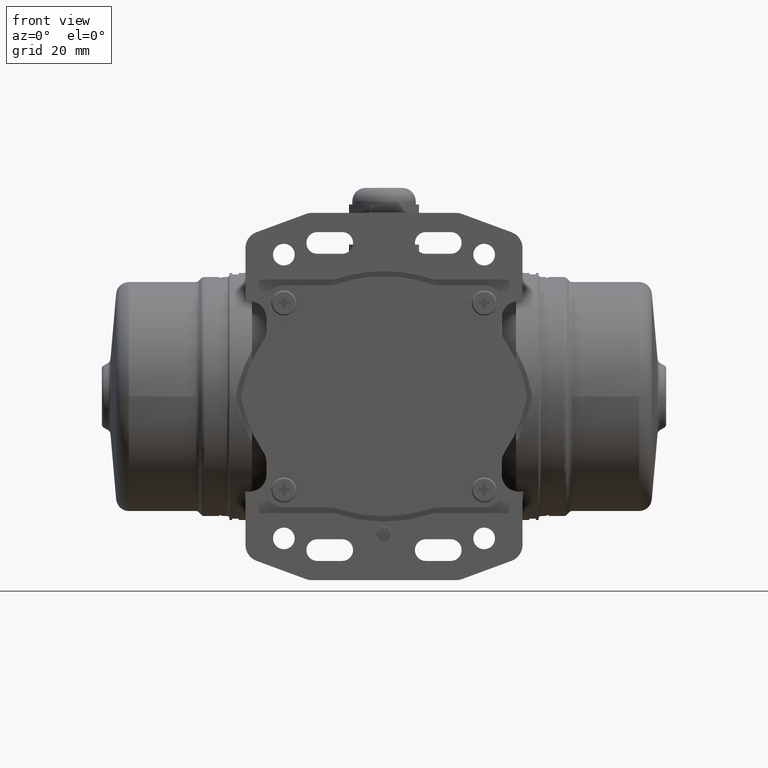
[diagram: clean part render]
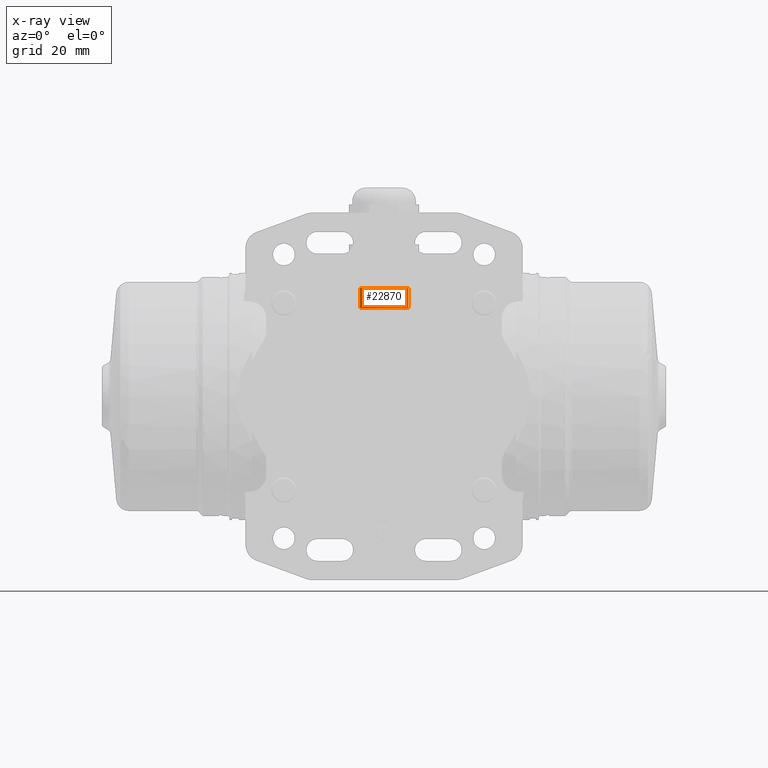
[diagram: x-ray — body ghosted, one internal face saturated and labeled with its STEP entity id]
A machine part, front view, then the same camera in x-ray: the body is ghosted and one INTERNAL B-rep face — a face not visible from any outside direction — is saturated and labeled: STEP entity #22870.
In plain terms, the highlighted cylindrical surface (edge-blend (fillet) strip) has radius 7.25 mm, axis along (0, 0, 1).
Its self-contained STEP definition (entity closure, byte-faithful):
#4714 = CARTESIAN_POINT ( 'NONE',  ( -7.249999999999992900, -18.00000000000000000, 32.50000000000000000 ) ) ;
#4731 = CARTESIAN_POINT ( 'NONE',  ( 7.250000000000008000, -18.00000000000000000, 26.50000000000000000 ) ) ;
#4733 = CIRCLE ( 'NONE', #4784, 7.250000000000000000 ) ;
#4746 = CARTESIAN_POINT ( 'NONE',  ( 8.239936510889830500E-015, -18.00000000000000000, 40.50000000000000000 ) ) ;
#4748 = CARTESIAN_POINT ( 'NONE',  ( 7.250000000000008000, -18.00000000000000000, 32.50000000000000000 ) ) ;
#4758 = CYLINDRICAL_SURFACE ( 'NONE', #4776, 7.250000000000000000 ) ;
#4759 = CARTESIAN_POINT ( 'NONE',  ( 8.239936510889830500E-015, -18.00000000000000000, 32.50000000000000000 ) ) ;
#4761 = DIRECTION ( 'NONE',  ( -0.0000000000000000000, -0.0000000000000000000, -1.000000000000000000 ) ) ;
#4762 = DIRECTION ( 'NONE',  ( 1.000000000000000000, 0.0000000000000000000, 0.0000000000000000000 ) ) ;
#4776 = AXIS2_PLACEMENT_3D ( 'NONE', #4746, #4780, #4762 ) ;
#4778 = CIRCLE ( 'NONE', #4814, 7.250000000000000000 ) ;
#4779 = CARTESIAN_POINT ( 'NONE',  ( -7.249999999999992900, -18.00000000000000000, 26.50000000000000000 ) ) ;
#4780 = DIRECTION ( 'NONE',  ( 0.0000000000000000000, 0.0000000000000000000, 1.000000000000000000 ) ) ;
#4781 = DIRECTION ( 'NONE',  ( 1.000000000000000000, 0.0000000000000000000, 0.0000000000000000000 ) ) ;
#4782 = DIRECTION ( 'NONE',  ( 0.0000000000000000000, 0.0000000000000000000, 1.000000000000000000 ) ) ;
#4783 = CARTESIAN_POINT ( 'NONE',  ( 8.239936510889830500E-015, -18.00000000000000000, 26.50000000000000000 ) ) ;
#4784 = AXIS2_PLACEMENT_3D ( 'NONE', #4783, #4782, #4781 ) ;
#4786 = FACE_OUTER_BOUND ( 'NONE', #22866, .T. ) ;
#4807 = DIRECTION ( 'NONE',  ( 0.0000000000000000000, 0.0000000000000000000, 1.000000000000000000 ) ) ;
#4810 = VECTOR ( 'NONE', #4807, 1000.000000000000000 ) ;
#4811 = CARTESIAN_POINT ( 'NONE',  ( -7.249999999999992900, -18.00000000000000000, 40.50000000000000000 ) ) ;
#4812 = LINE ( 'NONE', #4811, #4810 ) ;
#4813 = DIRECTION ( 'NONE',  ( 1.000000000000000000, 0.0000000000000000000, 0.0000000000000000000 ) ) ;
#4814 = AXIS2_PLACEMENT_3D ( 'NONE', #4759, #4761, #4813 ) ;
#4821 = DIRECTION ( 'NONE',  ( 0.0000000000000000000, 0.0000000000000000000, 1.000000000000000000 ) ) ;
#4822 = VECTOR ( 'NONE', #4821, 1000.000000000000000 ) ;
#4823 = CARTESIAN_POINT ( 'NONE',  ( 7.250000000000008000, -18.00000000000000000, 40.50000000000000000 ) ) ;
#4826 = LINE ( 'NONE', #4823, #4822 ) ;
#22835 = ORIENTED_EDGE ( 'NONE', *, *, #22871, .F. ) ;
#22859 = ORIENTED_EDGE ( 'NONE', *, *, #22887, .F. ) ;
#22861 = VERTEX_POINT ( 'NONE', #4714 ) ;
#22865 = EDGE_CURVE ( 'NONE', #22875, #22869, #4733, .T. ) ;
#22866 = EDGE_LOOP ( 'NONE', ( #22873, #22872, #22835, #22859 ) ) ;
#22868 = VERTEX_POINT ( 'NONE', #4748 ) ;
#22869 = VERTEX_POINT ( 'NONE', #4731 ) ;
#22870 = ADVANCED_FACE ( 'NONE', ( #4786 ), #4758, .F. ) ;
#22871 = EDGE_CURVE ( 'NONE', #22868, #22861, #4778, .T. ) ;
#22872 = ORIENTED_EDGE ( 'NONE', *, *, #22876, .T. ) ;
#22873 = ORIENTED_EDGE ( 'NONE', *, *, #22865, .F. ) ;
#22875 = VERTEX_POINT ( 'NONE', #4779 ) ;
#22876 = EDGE_CURVE ( 'NONE', #22875, #22861, #4812, .T. ) ;
#22887 = EDGE_CURVE ( 'NONE', #22869, #22868, #4826, .T. ) ;